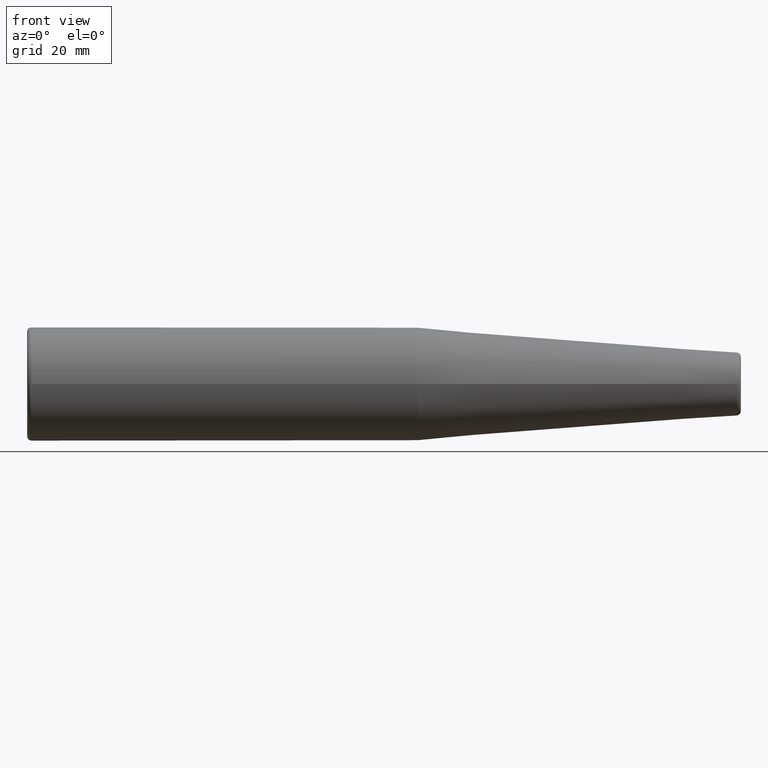
[diagram: clean part render]
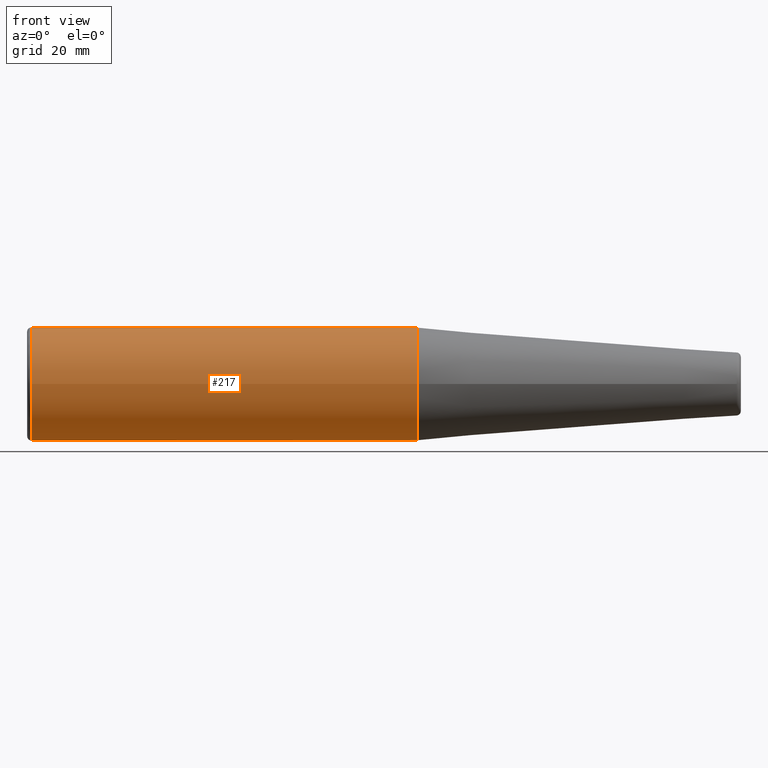
[diagram: same view with one face highlighted and labeled with its STEP entity id]
A machine part, front view. The second image highlights one B-rep face of the part: STEP entity #217.
In plain terms, the highlighted cylindrical surface (bore or boss wall) has radius 12.7 mm, axis along (-1, 0, 0).
Its self-contained STEP definition (entity closure, byte-faithful):
#34=FACE_OUTER_BOUND('',#49,.T.);
#49=EDGE_LOOP('',(#174,#175,#176,#177,#178));
#67=LINE('',#400,#76);
#76=VECTOR('',#327,12.7);
#89=CIRCLE('',#264,12.7);
#90=CIRCLE('',#265,12.7);
#91=CIRCLE('',#267,12.7);
#108=VERTEX_POINT('',#393);
#109=VERTEX_POINT('',#395);
#110=VERTEX_POINT('',#399);
#132=EDGE_CURVE('',#108,#109,#89,.T.);
#133=EDGE_CURVE('',#109,#108,#90,.T.);
#134=EDGE_CURVE('',#109,#110,#67,.T.);
#135=EDGE_CURVE('',#110,#110,#91,.T.);
#174=ORIENTED_EDGE('',*,*,#133,.F.);
#175=ORIENTED_EDGE('',*,*,#134,.T.);
#176=ORIENTED_EDGE('',*,*,#135,.T.);
#177=ORIENTED_EDGE('',*,*,#134,.F.);
#178=ORIENTED_EDGE('',*,*,#132,.F.);
#208=CYLINDRICAL_SURFACE('',#266,12.7);
#217=ADVANCED_FACE('',(#34),#208,.T.);
#264=AXIS2_PLACEMENT_3D('',#396,#321,#322);
#265=AXIS2_PLACEMENT_3D('',#397,#323,#324);
#266=AXIS2_PLACEMENT_3D('',#398,#325,#326);
#267=AXIS2_PLACEMENT_3D('',#401,#328,#329);
#321=DIRECTION('center_axis',(-1.,0.,0.));
#322=DIRECTION('ref_axis',(0.,-1.,-1.83697019872103E-16));
#323=DIRECTION('center_axis',(-1.,0.,0.));
#324=DIRECTION('ref_axis',(0.,-1.,-1.83697019872103E-16));
#325=DIRECTION('center_axis',(-1.,0.,0.));
#326=DIRECTION('ref_axis',(0.,1.,0.));
#327=DIRECTION('',(1.,0.,0.));
#328=DIRECTION('center_axis',(-1.,0.,0.));
#329=DIRECTION('ref_axis',(0.,0.,1.));
#393=CARTESIAN_POINT('',(-159.,-1.55530143491714E-15,-12.7));
#395=CARTESIAN_POINT('',(-159.,-12.7,1.55530143491714E-15));
#396=CARTESIAN_POINT('Origin',(-159.,0.,0.));
#397=CARTESIAN_POINT('Origin',(-159.,0.,0.));
#398=CARTESIAN_POINT('Origin',(-116.212683498098,0.,0.));
#399=CARTESIAN_POINT('',(-72.4253669961954,-12.7,1.55530143491714E-15));
#400=CARTESIAN_POINT('',(-116.212683498098,-12.7,1.55530143491714E-15));
#401=CARTESIAN_POINT('Origin',(-72.4253669961954,0.,0.));